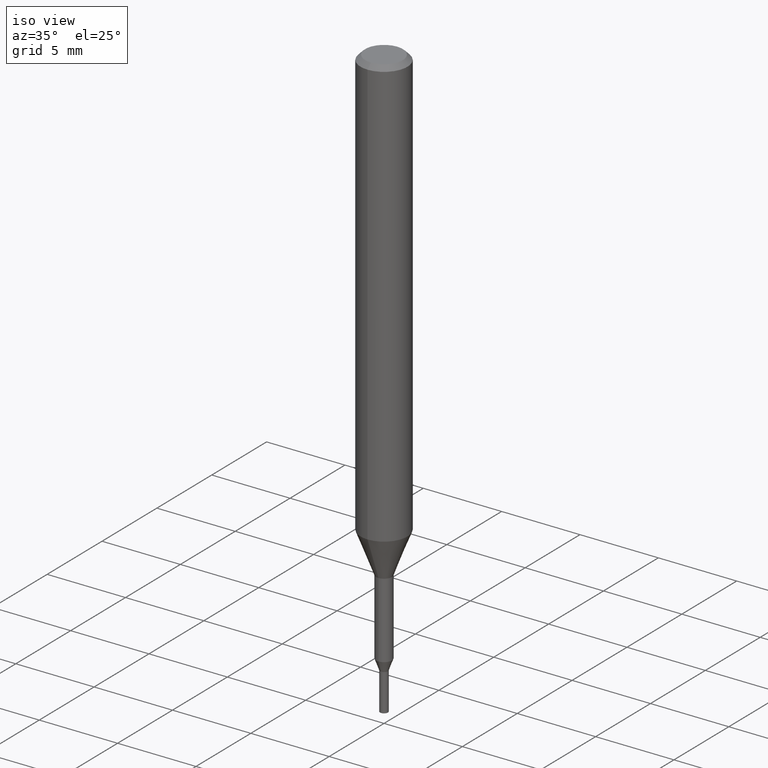
[diagram: clean part render]
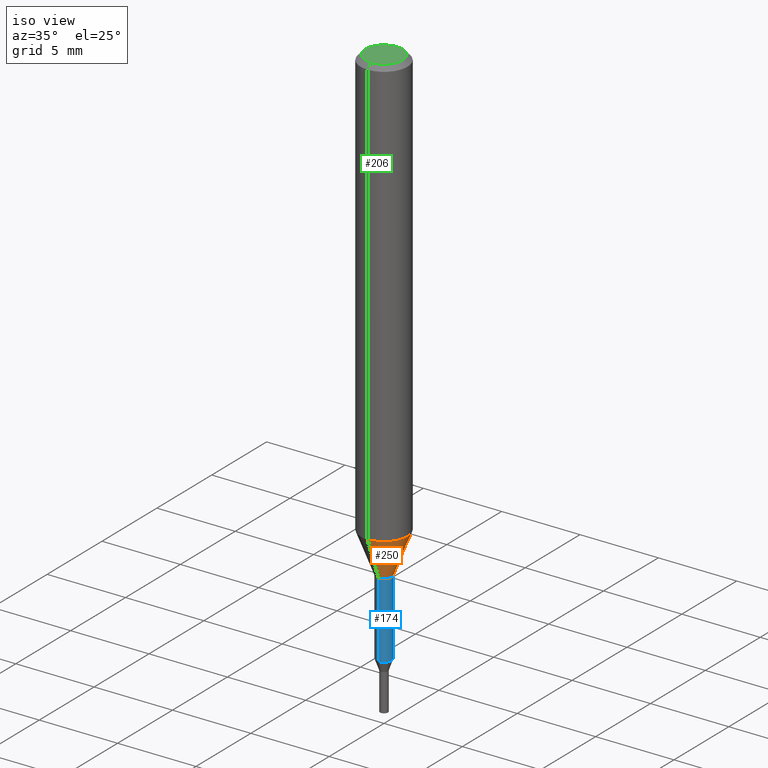
[diagram: same view with three faces highlighted in distinct colors, each labeled with its STEP entity id]
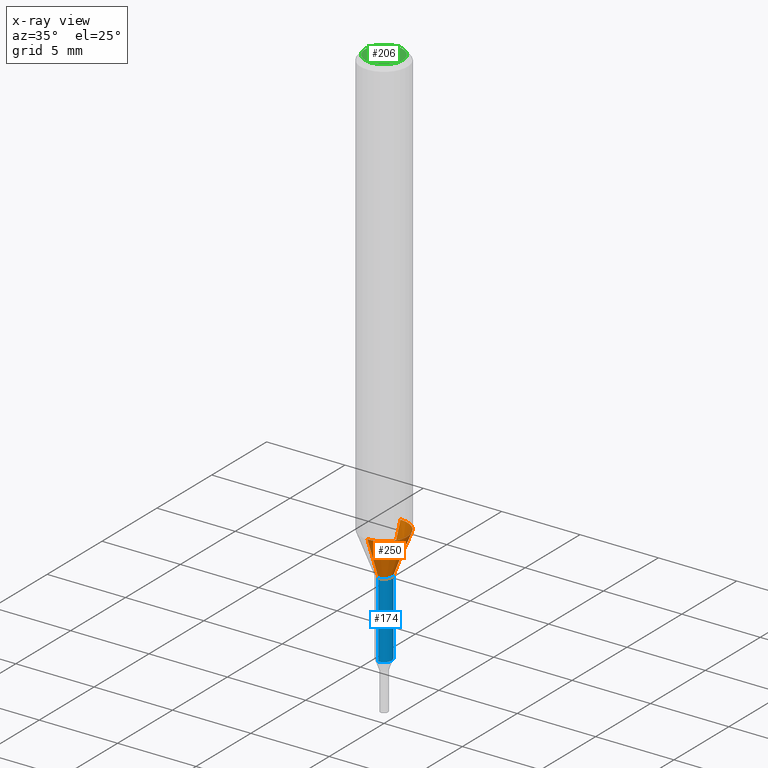
[diagram: x-ray of the same camera — body ghosted, the three highlighted faces saturated]
A machine part, iso view with three faces highlighted in distinct colors.
The next image is the same camera in x-ray (body ghosted, the three faces saturated) — at least one of them is partly hidden behind the body in this view.
Their STEP definitions:

[orange] entity #250 — the highlighted conical surface has half-angle 21.001 deg.
#114=VERTEX_POINT('',#291);
#158=VERTEX_POINT('',#341);
#172=VERTEX_POINT('',#356);
#178=EDGE_CURVE('',#114,#236,#363,.T.);
#182=EDGE_CURVE('',#158,#114,#367,.T.);
#220=EDGE_CURVE('',#172,#236,#409,.T.);
#236=VERTEX_POINT('',#426);
#250=ADVANCED_FACE('',(#444),#445,.T.);
#262=EDGE_CURVE('',#172,#158,#458,.T.);
#291=CARTESIAN_POINT('',(6.12303176911189E-017,-0.5,-30.0));
#341=CARTESIAN_POINT('',(0.0,0.5,-30.0));
#356=CARTESIAN_POINT('',(0.0,1.5,-27.395));
#363=LINE('',#570,#571);
#367=CIRCLE('',#577,0.5);
#409=CIRCLE('',#635,1.5);
#426=CARTESIAN_POINT('',(1.83690953073357E-016,-1.5,-27.395));
#444=FACE_OUTER_BOUND('',#678,.T.);
#445=CONICAL_SURFACE('',#679,1.0,0.366530581623394);
#458=LINE('',#697,#698);
#570=CARTESIAN_POINT('',(1.22460635382238E-016,-1.0,-28.6975));
#571=VECTOR('',#800,1.0);
#577=AXIS2_PLACEMENT_3D('',#804,#805,#806);
#635=AXIS2_PLACEMENT_3D('',#849,#850,#851);
#678=EDGE_LOOP('',(#902,#903,#904,#905));
#679=AXIS2_PLACEMENT_3D('',#906,#907,#908);
#697=CARTESIAN_POINT('',(-1.22460635382238E-016,1.0,-28.6975));
#698=VECTOR('',#922,1.0);
#800=DIRECTION('',(4.38872745501645E-017,-0.35837862847256,0.933576327171018));
#804=CARTESIAN_POINT('',(0.0,0.0,-30.0));
#805=DIRECTION('',(0.0,0.0,-1.0));
#806=DIRECTION('',(0.0,1.0,0.0));
#849=CARTESIAN_POINT('',(0.0,0.0,-27.395));
#850=DIRECTION('',(0.0,0.0,-1.0));
#851=DIRECTION('',(0.0,1.0,0.0));
#902=ORIENTED_EDGE('',*,*,#262,.F.);
#903=ORIENTED_EDGE('',*,*,#220,.T.);
#904=ORIENTED_EDGE('',*,*,#178,.F.);
#905=ORIENTED_EDGE('',*,*,#182,.F.);
#906=CARTESIAN_POINT('',(0.0,0.0,-28.6975));
#907=DIRECTION('',(-0.0,-0.0,1.0));
#908=DIRECTION('',(0.0,1.0,0.0));
#922=DIRECTION('',(4.38872745501645E-017,-0.35837862847256,-0.933576327171018));

[blue] entity #174 — the highlighted cylindrical surface (edge-blend (fillet) strip) has radius 0.5 mm, axis along (-0, -0, 1).
#132=VERTEX_POINT('',#311);
#166=EDGE_CURVE('',#208,#192,#350,.T.);
#174=ADVANCED_FACE('',(#358),#359,.T.);
#192=VERTEX_POINT('',#377);
#208=VERTEX_POINT('',#395);
#216=VERTEX_POINT('',#405);
#218=EDGE_CURVE('',#208,#216,#407,.T.);
#224=EDGE_CURVE('',#132,#216,#413,.T.);
#230=EDGE_CURVE('',#192,#132,#419,.T.);
#311=CARTESIAN_POINT('',(6.12241946593498E-017,-0.49995,-34.813));
#350=LINE('',#552,#553);
#358=FACE_OUTER_BOUND('',#564,.T.);
#359=CYLINDRICAL_SURFACE('',#565,0.49995);
#377=CARTESIAN_POINT('',(0.0,0.49995,-34.813));
#395=CARTESIAN_POINT('',(0.0,0.49995,-30.0));
#405=CARTESIAN_POINT('',(6.12241946593498E-017,-0.49995,-30.0));
#407=CIRCLE('',#632,0.49995);
#413=LINE('',#640,#641);
#419=CIRCLE('',#649,0.49995);
#552=CARTESIAN_POINT('',(-6.12241946593498E-017,0.49995,-32.4065));
#553=VECTOR('',#787,1.0);
#564=EDGE_LOOP('',(#793,#794,#795,#796));
#565=AXIS2_PLACEMENT_3D('',#797,#798,#799);
#632=AXIS2_PLACEMENT_3D('',#846,#847,#848);
#640=CARTESIAN_POINT('',(6.12241946593498E-017,-0.49995,-32.4065));
#641=VECTOR('',#852,1.0);
#649=AXIS2_PLACEMENT_3D('',#856,#857,#858);
#787=DIRECTION('',(0.0,0.0,-1.0));
#793=ORIENTED_EDGE('',*,*,#166,.F.);
#794=ORIENTED_EDGE('',*,*,#218,.T.);
#795=ORIENTED_EDGE('',*,*,#224,.F.);
#796=ORIENTED_EDGE('',*,*,#230,.F.);
#797=CARTESIAN_POINT('',(0.0,0.0,-32.4065));
#798=DIRECTION('',(-0.0,-0.0,1.0));
#799=DIRECTION('',(0.0,1.0,0.0));
#846=CARTESIAN_POINT('',(0.0,0.0,-30.0));
#847=DIRECTION('',(0.0,0.0,-1.0));
#848=DIRECTION('',(0.0,1.0,0.0));
#852=DIRECTION('',(-0.0,-0.0,1.0));
#856=CARTESIAN_POINT('',(0.0,0.0,-34.813));
#857=DIRECTION('',(0.0,0.0,-1.0));
#858=DIRECTION('',(0.0,1.0,0.0));

[green] entity #206 — the highlighted planar face has unit normal (-0, 0, 1).
#112=EDGE_CURVE('',#122,#176,#289,.T.);
#122=VERTEX_POINT('',#299);
#170=EDGE_CURVE('',#176,#122,#354,.T.);
#176=VERTEX_POINT('',#361);
#206=ADVANCED_FACE('',(#392),#393,.T.);
#289=CIRCLE('',#480,1.2);
#299=CARTESIAN_POINT('',(1.46952762458685E-016,-1.2,0.0));
#354=CIRCLE('',#560,1.2);
#361=CARTESIAN_POINT('',(0.0,1.2,0.0));
#392=FACE_OUTER_BOUND('',#615,.T.);
#393=PLANE('',#616);
#480=AXIS2_PLACEMENT_3D('',#708,#709,#710);
#560=AXIS2_PLACEMENT_3D('',#789,#790,#791);
#615=EDGE_LOOP('',(#830,#831));
#616=AXIS2_PLACEMENT_3D('',#832,#833,#834);
#708=CARTESIAN_POINT('',(0.0,0.0,0.0));
#709=DIRECTION('',(0.0,0.0,-1.0));
#710=DIRECTION('',(0.0,1.0,0.0));
#789=CARTESIAN_POINT('',(0.0,0.0,0.0));
#790=DIRECTION('',(0.0,0.0,-1.0));
#791=DIRECTION('',(0.0,1.0,0.0));
#830=ORIENTED_EDGE('',*,*,#170,.F.);
#831=ORIENTED_EDGE('',*,*,#112,.F.);
#832=CARTESIAN_POINT('',(0.0,0.6,0.0));
#833=DIRECTION('',(-0.0,0.0,1.0));
#834=DIRECTION('',(0.0,-1.0,0.0));